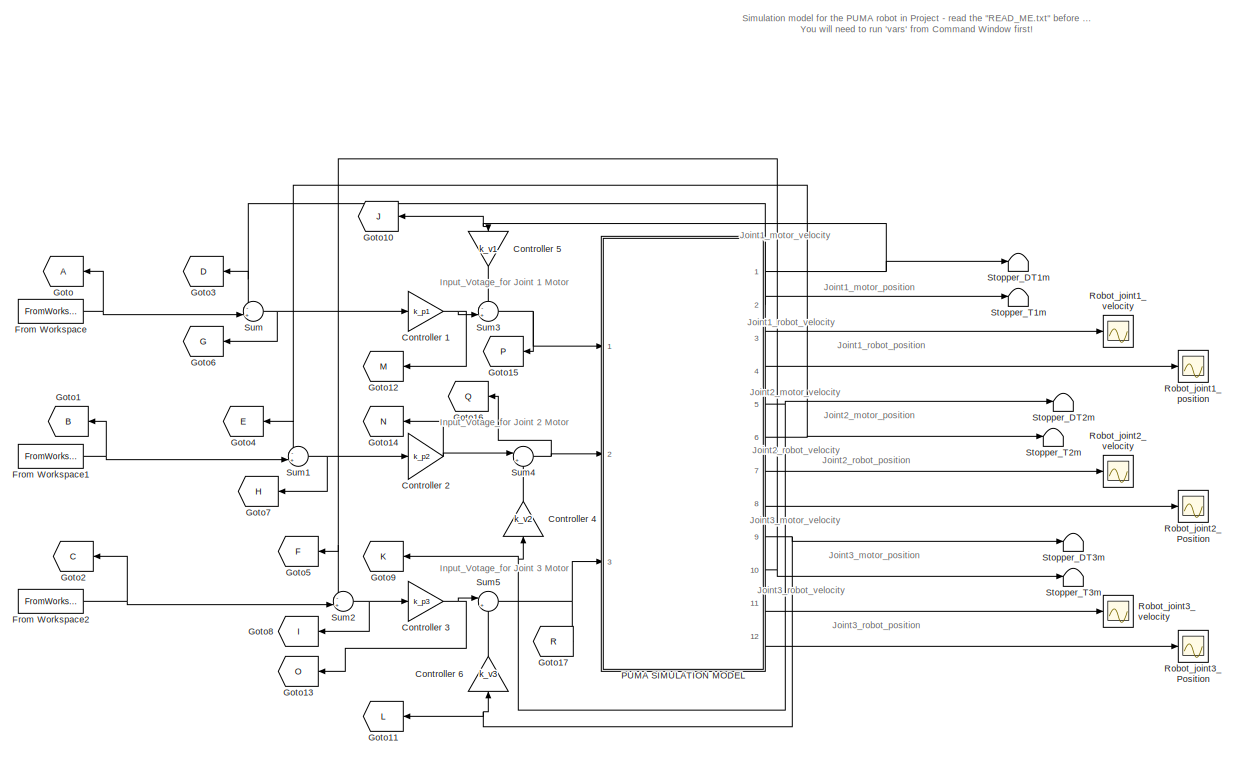
[diagram: root canvas - part 1/2, full width, middle band]
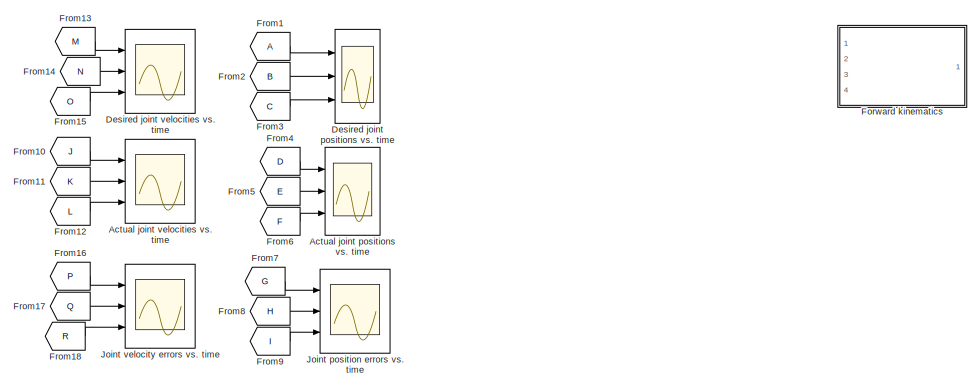
[diagram: root canvas - part 2/2, full width, bottom band]
MODEL slx_6dec7e815688
KIND model
CONFIG AbsTol = 1e-6
CONFIG EnableMultiTasking = off
CONFIG FixedStep = auto
CONFIG MaxStep = 10
CONFIG MinStep = auto
CONFIG RelTol = 1e-3
CONFIG SampleTimeConstraint = Unconstrained
CONFIG SolverName = ode45
CONFIG StartTime = 0.0
CONFIG StopTime = 5
BLOCK [Scope] Actual joint positions vs. time 
  Floating = off
  NumInputPorts = 3
  Ports = [3]
  ScopeSpecificationString = Simulink.scopes.TimeScopeBlockCfg('CurrentConfiguration', extmgr.ConfigurationSet(extmgr.Configuration('Core','General UI',true),extmgr.Configuration('Core','Source UI',true),extmgr.Configuration('Sources','WiredSimulink',true,'DataLoggingVariableName','ScopeData2','DataLoggingSaveFormat','StructureWithTime','DataLoggingLimitDataPoints',true,'DataLoggingDecimation','1','DataLoggingDecimateData',tr...<+2044ch>
BLOCK [Scope] Actual joint velocities vs. time 
  Floating = off
  NumInputPorts = 3
  Ports = [3]
  ScopeSpecificationString = Simulink.scopes.TimeScopeBlockCfg('CurrentConfiguration', extmgr.ConfigurationSet(extmgr.Configuration('Core','General UI',true),extmgr.Configuration('Core','Source UI',true),extmgr.Configuration('Sources','WiredSimulink',true,'DataLoggingVariableName','ScopeData4','DataLoggingSaveFormat','StructureWithTime','DataLoggingLimitDataPoints',true,'DataLoggingDecimation','1','DataLoggingDecimateData',tr...<+2162ch>
BLOCK [Gain] Controller 1
  Gain = k_p1
BLOCK [Gain] Controller 2
  Gain = k_p2
BLOCK [Gain] Controller 3
  Gain = k_p3
BLOCK [Gain] Controller 4
  Gain = k_v2
  NameLocation = left
BLOCK [Gain] Controller 5
  Gain = k_v1
  NameLocation = left
BLOCK [Gain] Controller 6
  Gain = k_v3
  NameLocation = left
BLOCK [Scope] Desired joint positions vs. time
  Floating = off
  NumInputPorts = 3
  Ports = [3]
  ScopeSpecificationString = Simulink.scopes.TimeScopeBlockCfg('CurrentConfiguration', extmgr.ConfigurationSet(extmgr.Configuration('Core','General UI',true),extmgr.Configuration('Core','Source UI',true),extmgr.Configuration('Sources','WiredSimulink',true,'DataLoggingVariableName','ScopeData1','DataLoggingSaveFormat','StructureWithTime','DataLoggingLimitDataPoints',true,'DataLoggingDecimation','1','DataLoggingDecimateData',tr...<+2117ch>
BLOCK [Scope] Desired joint velocities vs. time 
  Floating = off
  NumInputPorts = 3
  Ports = [3]
  ScopeSpecificationString = Simulink.scopes.TimeScopeBlockCfg('CurrentConfiguration', extmgr.ConfigurationSet(extmgr.Configuration('Core','General UI',true),extmgr.Configuration('Core','Source UI',true),extmgr.Configuration('Sources','WiredSimulink',true,'DataLoggingVariableName','ScopeData5','DataLoggingSaveFormat','StructureWithTime','DataLoggingLimitDataPoints',true,'DataLoggingDecimation','1','DataLoggingDecimateData',tr...<+2162ch>
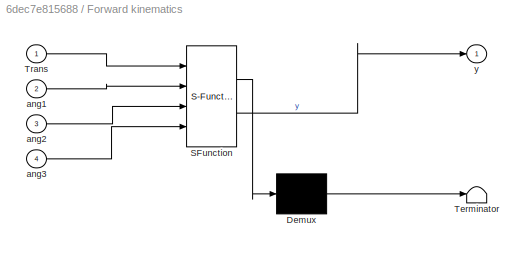
BLOCK [SubSystem] Forward kinematics
  ErrorFcn = Stateflow.Translate.translate
  PermitHierarchicalResolution = ExplicitOnly
  Ports = [4, 1]
  RequestExecContextInheritance = off
  SFBlockType = MATLAB Function
  TreatAsAtomicUnit = on
BLOCK [Demux] Forward kinematics/ Demux 
  Outputs = 1
  Ports = [1, 1]
BLOCK [S-Function] Forward kinematics/ SFunction 
  EnableBusSupport = off
  FunctionName = sf_sfun
  PortCounts = [4 2]
  Ports = [4, 2]
  SFcnIsStateOwnerBlock = off
  SFunctionDeploymentMode = off
  Tag = Stateflow S-Function 2
BLOCK [Terminator] Forward kinematics/ Terminator 
BLOCK [Inport] Forward kinematics/Trans
BLOCK [Inport] Forward kinematics/ang1
  Port = 2
BLOCK [Inport] Forward kinematics/ang2
  Port = 3
BLOCK [Inport] Forward kinematics/ang3
  Port = 4
BLOCK [Outport] Forward kinematics/y
BLOCK [FromWorkspace] From Workspace
  OutputAfterFinalValue = Holding final value
  SampleTime = -1
  VariableName = movement(:,[1,2])
BLOCK [FromWorkspace] From Workspace1
  OutDataTypeStr = double
  OutputAfterFinalValue = Holding final value
  SampleTime = -1
  VariableName = movement(:,[3,4])
BLOCK [FromWorkspace] From Workspace2
  OutputAfterFinalValue = Holding final value
  SampleTime = -1
  VariableName = movement(:,[5,6])
BLOCK [From] From1
BLOCK [From] From10
  GotoTag = J
BLOCK [From] From11
  GotoTag = K
BLOCK [From] From12
  GotoTag = L
BLOCK [From] From13
  GotoTag = M
BLOCK [From] From14
  GotoTag = N
BLOCK [From] From15
  GotoTag = O
BLOCK [From] From16
  GotoTag = P
BLOCK [From] From17
  GotoTag = Q
BLOCK [From] From18
  GotoTag = R
BLOCK [From] From2
  GotoTag = B
BLOCK [From] From3
  GotoTag = C
BLOCK [From] From4
  GotoTag = D
BLOCK [From] From5
  GotoTag = E
BLOCK [From] From6
  GotoTag = F
BLOCK [From] From7
  GotoTag = G
BLOCK [From] From8
  GotoTag = H
BLOCK [From] From9
  GotoTag = I
BLOCK [Goto] Goto
BLOCK [Goto] Goto1
  GotoTag = B
BLOCK [Goto] Goto10
  GotoTag = J
BLOCK [Goto] Goto11
  GotoTag = L
BLOCK [Goto] Goto12
  GotoTag = M
BLOCK [Goto] Goto13
  GotoTag = O
BLOCK [Goto] Goto14
  GotoTag = N
BLOCK [Goto] Goto15
  GotoTag = P
BLOCK [Goto] Goto16
  GotoTag = Q
BLOCK [Goto] Goto17
  GotoTag = R
BLOCK [Goto] Goto2
  GotoTag = C
BLOCK [Goto] Goto3
  GotoTag = D
BLOCK [Goto] Goto4
  GotoTag = E
BLOCK [Goto] Goto5
  GotoTag = F
BLOCK [Goto] Goto6
  GotoTag = G
BLOCK [Goto] Goto7
  GotoTag = H
BLOCK [Goto] Goto8
  GotoTag = I
BLOCK [Goto] Goto9
  GotoTag = K
BLOCK [Scope] Joint position errors vs. time
  Floating = off
  NumInputPorts = 3
  Ports = [3]
  ScopeSpecificationString = Simulink.scopes.TimeScopeBlockCfg('CurrentConfiguration', extmgr.ConfigurationSet(extmgr.Configuration('Core','General UI',true),extmgr.Configuration('Core','Source UI',true),extmgr.Configuration('Sources','WiredSimulink',true,'DataLoggingVariableName','ScopeData3','DataLoggingSaveFormat','StructureWithTime','DataLoggingLimitDataPoints',true,'DataLoggingDecimation','1','DataLoggingDecimateData',tr...<+2162ch>
BLOCK [Scope] Joint velocity errors vs. time 
  Floating = off
  NumInputPorts = 3
  Ports = [3]
  ScopeSpecificationString = Simulink.scopes.TimeScopeBlockCfg('CurrentConfiguration', extmgr.ConfigurationSet(extmgr.Configuration('Core','General UI',true),extmgr.Configuration('Core','Source UI',true),extmgr.Configuration('Sources','WiredSimulink',true,'DataLoggingVariableName','ScopeData6','DataLoggingSaveFormat','StructureWithTime','DataLoggingLimitDataPoints',true,'DataLoggingDecimation','1','DataLoggingDecimateData',tr...<+2162ch>
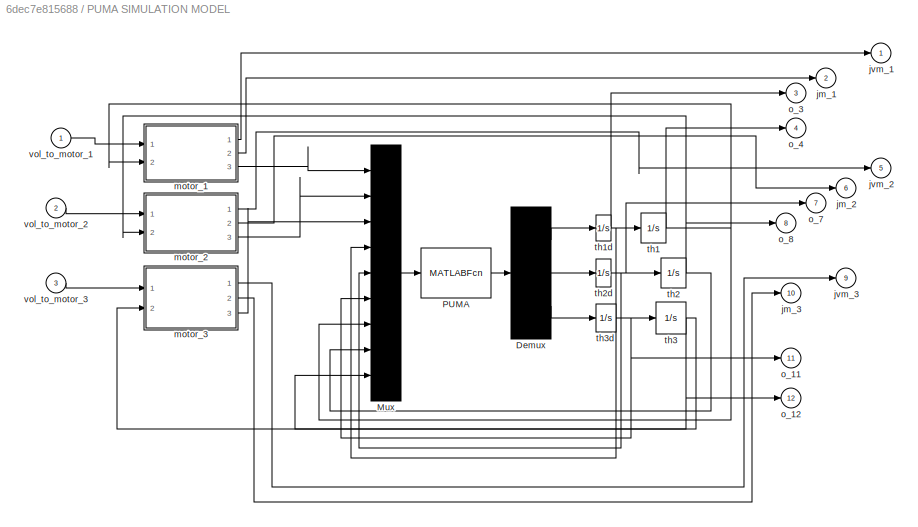
BLOCK [SubSystem] PUMA SIMULATION MODEL
  Ports = [3, 12]
  RequestExecContextInheritance = off
BLOCK [Demux] PUMA SIMULATION MODEL/Demux
  DisplayOption = none
  Outputs = 3
  Ports = [1, 3]
BLOCK [Mux] PUMA SIMULATION MODEL/Mux
  Inputs = 9
  Ports = [9, 1]
BLOCK [MATLABFcn] PUMA SIMULATION MODEL/PUMA
  MATLABFcn = puma
  OutputDimensions = 3
  Ports = [1, 1]
BLOCK [Outport] PUMA SIMULATION MODEL/jm_1
  InitialOutput = 0
  Port = 2
  VectorParamsAs1DForOutWhenUnconnected = off
BLOCK [Outport] PUMA SIMULATION MODEL/jm_2
  InitialOutput = 0
  Port = 6
  VectorParamsAs1DForOutWhenUnconnected = off
BLOCK [Outport] PUMA SIMULATION MODEL/jm_3
  InitialOutput = 0
  Port = 10
  VectorParamsAs1DForOutWhenUnconnected = off
BLOCK [Outport] PUMA SIMULATION MODEL/jvm_1
  InitialOutput = 0
  VectorParamsAs1DForOutWhenUnconnected = off
BLOCK [Outport] PUMA SIMULATION MODEL/jvm_2
  InitialOutput = 0
  Port = 5
  VectorParamsAs1DForOutWhenUnconnected = off
BLOCK [Outport] PUMA SIMULATION MODEL/jvm_3
  InitialOutput = 0
  Port = 9
  VectorParamsAs1DForOutWhenUnconnected = off
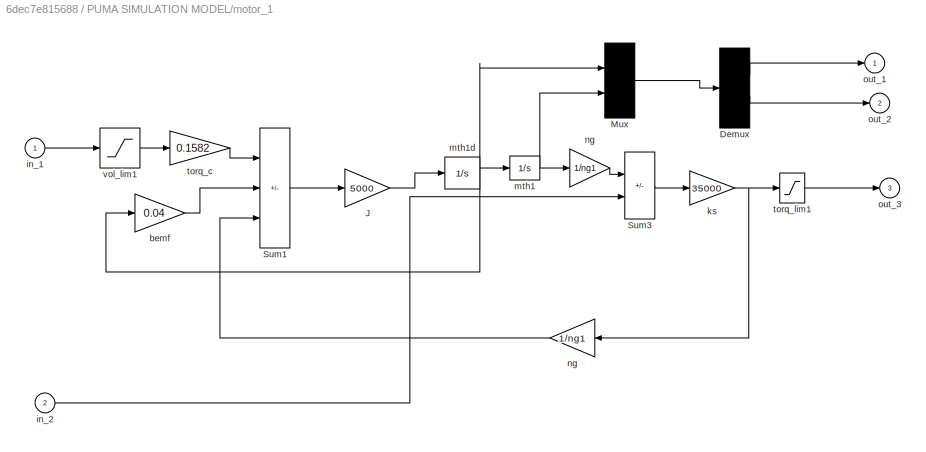
BLOCK [SubSystem] PUMA SIMULATION MODEL/motor_1
  Ports = [2, 3]
  RequestExecContextInheritance = off
BLOCK [Demux] PUMA SIMULATION MODEL/motor_1/Demux
  DisplayOption = none
  Outputs = 2
  Ports = [1, 2]
BLOCK [Gain] PUMA SIMULATION MODEL/motor_1/J
  Gain = 5000
  OutDataTypeStr = Inherit: Same as input
  ParamDataTypeStr = Inherit: Same as input
  SaturateOnIntegerOverflow = on
BLOCK [Mux] PUMA SIMULATION MODEL/motor_1/Mux
  Inputs = 2
  Ports = [2, 1]
BLOCK [Sum] PUMA SIMULATION MODEL/motor_1/Sum1
  IconShape = rectangular
  InputSameDT = on
  Inputs = +--
  OutDataTypeStr = Inherit: Same as first input
  Ports = [3, 1]
  SaturateOnIntegerOverflow = on
BLOCK [Sum] PUMA SIMULATION MODEL/motor_1/Sum3
  IconShape = rectangular
  InputSameDT = on
  Inputs = +-
  OutDataTypeStr = Inherit: Same as first input
  Ports = [2, 1]
  SaturateOnIntegerOverflow = on
BLOCK [Gain] PUMA SIMULATION MODEL/motor_1/bemf
  Gain = 0.04
  OutDataTypeStr = Inherit: Same as input
  ParamDataTypeStr = Inherit: Same as input
  SaturateOnIntegerOverflow = on
BLOCK [Inport] PUMA SIMULATION MODEL/motor_1/in_1
BLOCK [Inport] PUMA SIMULATION MODEL/motor_1/in_2
  Port = 2
BLOCK [Gain] PUMA SIMULATION MODEL/motor_1/ks
  Gain = 35000
  OutDataTypeStr = Inherit: Same as input
  ParamDataTypeStr = Inherit: Same as input
  SaturateOnIntegerOverflow = on
BLOCK [Integrator] PUMA SIMULATION MODEL/motor_1/mth1
  InitialCondition = ng1*thr10
  Ports = [1, 1]
BLOCK [Integrator] PUMA SIMULATION MODEL/motor_1/mth1d
  Ports = [1, 1]
BLOCK [Gain] PUMA SIMULATION MODEL/motor_1/ng
  Gain = 1/ng1
  OutDataTypeStr = Inherit: Same as input
  ParamDataTypeStr = Inherit: Same as input
  SaturateOnIntegerOverflow = on
BLOCK [Gain] PUMA SIMULATION MODEL/motor_1/ng 
  Gain = 1/ng1
  OutDataTypeStr = Inherit: Same as input
  ParamDataTypeStr = Inherit: Same as input
  SaturateOnIntegerOverflow = on
BLOCK [Outport] PUMA SIMULATION MODEL/motor_1/out_1
  InitialOutput = 0
  VectorParamsAs1DForOutWhenUnconnected = off
BLOCK [Outport] PUMA SIMULATION MODEL/motor_1/out_2
  InitialOutput = 0
  Port = 2
  VectorParamsAs1DForOutWhenUnconnected = off
BLOCK [Outport] PUMA SIMULATION MODEL/motor_1/out_3
  InitialOutput = 0
  Port = 3
  VectorParamsAs1DForOutWhenUnconnected = off
BLOCK [Gain] PUMA SIMULATION MODEL/motor_1/torq_c
  Gain = 0.1582
  OutDataTypeStr = Inherit: Same as input
  ParamDataTypeStr = Inherit: Same as input
  SaturateOnIntegerOverflow = on
BLOCK [Saturate] PUMA SIMULATION MODEL/motor_1/torq_lim1
  LowerLimit = -1.2*ng1
  UpperLimit = 1.2*ng1
BLOCK [Saturate] PUMA SIMULATION MODEL/motor_1/vol_lim1
  LowerLimit = -40
  UpperLimit = 40
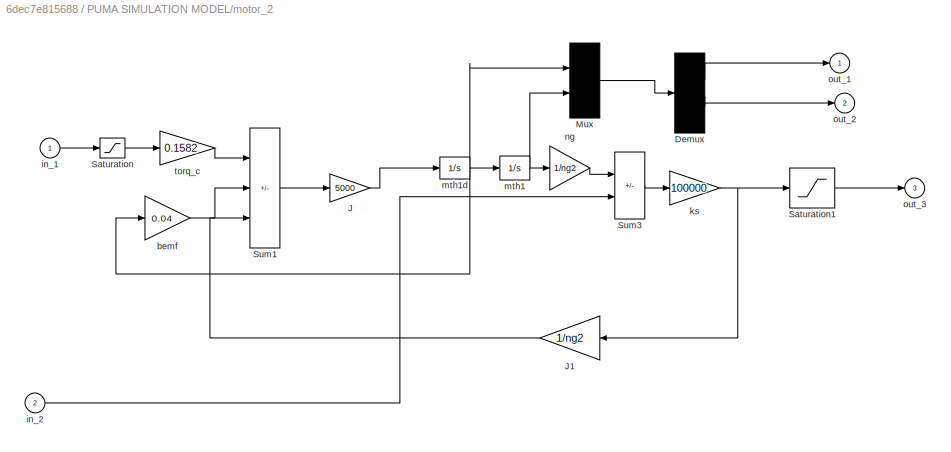
BLOCK [SubSystem] PUMA SIMULATION MODEL/motor_2
  Ports = [2, 3]
  RequestExecContextInheritance = off
BLOCK [Demux] PUMA SIMULATION MODEL/motor_2/Demux
  DisplayOption = none
  Outputs = 2
  Ports = [1, 2]
BLOCK [Gain] PUMA SIMULATION MODEL/motor_2/J
  Gain = 5000
  OutDataTypeStr = Inherit: Same as input
  ParamDataTypeStr = Inherit: Same as input
  SaturateOnIntegerOverflow = on
BLOCK [Gain] PUMA SIMULATION MODEL/motor_2/J1
  Gain = 1/ng2
  OutDataTypeStr = Inherit: Same as input
  ParamDataTypeStr = Inherit: Same as input
  SaturateOnIntegerOverflow = on
BLOCK [Mux] PUMA SIMULATION MODEL/motor_2/Mux
  Inputs = 2
  Ports = [2, 1]
BLOCK [Saturate] PUMA SIMULATION MODEL/motor_2/Saturation
  LowerLimit = -40
  UpperLimit = 40
BLOCK [Saturate] PUMA SIMULATION MODEL/motor_2/Saturation1
  LowerLimit = -ng2*1.2
  UpperLimit = ng2*1.2
BLOCK [Sum] PUMA SIMULATION MODEL/motor_2/Sum1
  IconShape = rectangular
  InputSameDT = on
  Inputs = +--
  OutDataTypeStr = Inherit: Same as first input
  Ports = [3, 1]
  SaturateOnIntegerOverflow = on
BLOCK [Sum] PUMA SIMULATION MODEL/motor_2/Sum3
  IconShape = rectangular
  InputSameDT = on
  Inputs = +-
  OutDataTypeStr = Inherit: Same as first input
  Ports = [2, 1]
  SaturateOnIntegerOverflow = on
BLOCK [Gain] PUMA SIMULATION MODEL/motor_2/bemf
  Gain = 0.04
  OutDataTypeStr = Inherit: Same as input
  ParamDataTypeStr = Inherit: Same as input
  SaturateOnIntegerOverflow = on
BLOCK [Inport] PUMA SIMULATION MODEL/motor_2/in_1
BLOCK [Inport] PUMA SIMULATION MODEL/motor_2/in_2
  Port = 2
BLOCK [Gain] PUMA SIMULATION MODEL/motor_2/ks
  Gain = 100000
  OutDataTypeStr = Inherit: Same as input
  ParamDataTypeStr = Inherit: Same as input
  SaturateOnIntegerOverflow = on
BLOCK [Integrator] PUMA SIMULATION MODEL/motor_2/mth1
  InitialCondition = thr20*ng2
  Ports = [1, 1]
BLOCK [Integrator] PUMA SIMULATION MODEL/motor_2/mth1d
  Ports = [1, 1]
BLOCK [Gain] PUMA SIMULATION MODEL/motor_2/ng
  Gain = 1/ng2
  OutDataTypeStr = Inherit: Same as input
  ParamDataTypeStr = Inherit: Same as input
  SaturateOnIntegerOverflow = on
BLOCK [Outport] PUMA SIMULATION MODEL/motor_2/out_1
  InitialOutput = 0
  VectorParamsAs1DForOutWhenUnconnected = off
BLOCK [Outport] PUMA SIMULATION MODEL/motor_2/out_2
  InitialOutput = 0
  Port = 2
  VectorParamsAs1DForOutWhenUnconnected = off
BLOCK [Outport] PUMA SIMULATION MODEL/motor_2/out_3
  InitialOutput = 0
  Port = 3
  VectorParamsAs1DForOutWhenUnconnected = off
BLOCK [Gain] PUMA SIMULATION MODEL/motor_2/torq_c
  Gain = 0.1582
  OutDataTypeStr = Inherit: Same as input
  ParamDataTypeStr = Inherit: Same as input
  SaturateOnIntegerOverflow = on
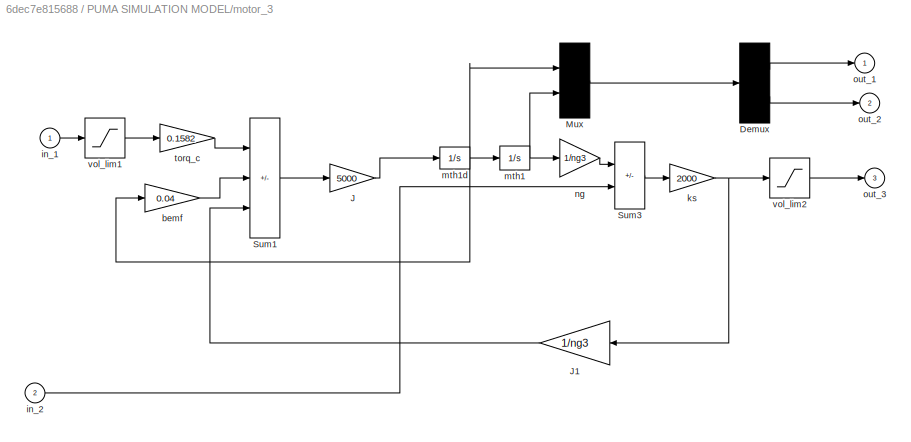
BLOCK [SubSystem] PUMA SIMULATION MODEL/motor_3
  Ports = [2, 3]
  RequestExecContextInheritance = off
BLOCK [Demux] PUMA SIMULATION MODEL/motor_3/Demux
  DisplayOption = none
  Outputs = 2
  Ports = [1, 2]
BLOCK [Gain] PUMA SIMULATION MODEL/motor_3/J
  Gain = 5000
  OutDataTypeStr = Inherit: Same as input
  ParamDataTypeStr = Inherit: Same as input
  SaturateOnIntegerOverflow = on
BLOCK [Gain] PUMA SIMULATION MODEL/motor_3/J1
  Gain = 1/ng3
  OutDataTypeStr = Inherit: Same as input
  ParamDataTypeStr = Inherit: Same as input
  SaturateOnIntegerOverflow = on
BLOCK [Mux] PUMA SIMULATION MODEL/motor_3/Mux
  Inputs = 2
  Ports = [2, 1]
BLOCK [Sum] PUMA SIMULATION MODEL/motor_3/Sum1
  IconShape = rectangular
  InputSameDT = on
  Inputs = +--
  OutDataTypeStr = Inherit: Same as first input
  Ports = [3, 1]
  SaturateOnIntegerOverflow = on
BLOCK [Sum] PUMA SIMULATION MODEL/motor_3/Sum3
  IconShape = rectangular
  InputSameDT = on
  Inputs = +-
  OutDataTypeStr = Inherit: Same as first input
  Ports = [2, 1]
  SaturateOnIntegerOverflow = on
BLOCK [Gain] PUMA SIMULATION MODEL/motor_3/bemf
  Gain = 0.04
  OutDataTypeStr = Inherit: Same as input
  ParamDataTypeStr = Inherit: Same as input
  SaturateOnIntegerOverflow = on
BLOCK [Inport] PUMA SIMULATION MODEL/motor_3/in_1
BLOCK [Inport] PUMA SIMULATION MODEL/motor_3/in_2
  Port = 2
BLOCK [Gain] PUMA SIMULATION MODEL/motor_3/ks
  Gain = 2000
  OutDataTypeStr = Inherit: Same as input
  ParamDataTypeStr = Inherit: Same as input
  SaturateOnIntegerOverflow = on
BLOCK [Integrator] PUMA SIMULATION MODEL/motor_3/mth1
  InitialCondition = thr30*ng3
  Ports = [1, 1]
BLOCK [Integrator] PUMA SIMULATION MODEL/motor_3/mth1d
  Ports = [1, 1]
BLOCK [Gain] PUMA SIMULATION MODEL/motor_3/ng
  Gain = 1/ng3
  OutDataTypeStr = Inherit: Same as input
  ParamDataTypeStr = Inherit: Same as input
  SaturateOnIntegerOverflow = on
BLOCK [Outport] PUMA SIMULATION MODEL/motor_3/out_1
  InitialOutput = 0
  VectorParamsAs1DForOutWhenUnconnected = off
BLOCK [Outport] PUMA SIMULATION MODEL/motor_3/out_2
  InitialOutput = 0
  Port = 2
  VectorParamsAs1DForOutWhenUnconnected = off
BLOCK [Outport] PUMA SIMULATION MODEL/motor_3/out_3
  InitialOutput = 0
  Port = 3
  VectorParamsAs1DForOutWhenUnconnected = off
BLOCK [Gain] PUMA SIMULATION MODEL/motor_3/torq_c
  Gain = 0.1582
  OutDataTypeStr = Inherit: Same as input
  ParamDataTypeStr = Inherit: Same as input
  SaturateOnIntegerOverflow = on
BLOCK [Saturate] PUMA SIMULATION MODEL/motor_3/vol_lim1
  LowerLimit = -40
  UpperLimit = 40
BLOCK [Saturate] PUMA SIMULATION MODEL/motor_3/vol_lim2
  LowerLimit = -1.2*ng3
  UpperLimit = 1.2*ng3
BLOCK [Outport] PUMA SIMULATION MODEL/o_11
  InitialOutput = 0
  Port = 11
  VectorParamsAs1DForOutWhenUnconnected = off
BLOCK [Outport] PUMA SIMULATION MODEL/o_12
  InitialOutput = 0
  Port = 12
  VectorParamsAs1DForOutWhenUnconnected = off
BLOCK [Outport] PUMA SIMULATION MODEL/o_3
  InitialOutput = 0
  Port = 3
  VectorParamsAs1DForOutWhenUnconnected = off
BLOCK [Outport] PUMA SIMULATION MODEL/o_4
  InitialOutput = 0
  Port = 4
  VectorParamsAs1DForOutWhenUnconnected = off
BLOCK [Outport] PUMA SIMULATION MODEL/o_7
  InitialOutput = 0
  Port = 7
  VectorParamsAs1DForOutWhenUnconnected = off
BLOCK [Outport] PUMA SIMULATION MODEL/o_8
  InitialOutput = 0
  Port = 8
  VectorParamsAs1DForOutWhenUnconnected = off
BLOCK [Integrator] PUMA SIMULATION MODEL/th1
  InitialCondition = thr10
  Ports = [1, 1]
BLOCK [Integrator] PUMA SIMULATION MODEL/th1d
  Ports = [1, 1]
BLOCK [Integrator] PUMA SIMULATION MODEL/th2
  InitialCondition = thr20
  Ports = [1, 1]
BLOCK [Integrator] PUMA SIMULATION MODEL/th2d
  Ports = [1, 1]
BLOCK [Integrator] PUMA SIMULATION MODEL/th3
  InitialCondition = thr30
  Ports = [1, 1]
BLOCK [Integrator] PUMA SIMULATION MODEL/th3d
  Ports = [1, 1]
BLOCK [Inport] PUMA SIMULATION MODEL/vol_to_motor_1
BLOCK [Inport] PUMA SIMULATION MODEL/vol_to_motor_2
  Port = 2
BLOCK [Inport] PUMA SIMULATION MODEL/vol_to_motor_3
  Port = 3
BLOCK [Scope] Robot_joint1_position
  Floating = off
  NumInputPorts = 1
  Ports = [1]
  ScopeSpecificationString = Simulink.scopes.TimeScopeBlockCfg('CurrentConfiguration', extmgr.ConfigurationSet(extmgr.Configuration('Core','General UI',true),extmgr.Configuration('Core','Source UI',true),extmgr.Configuration('Sources','WiredSimulink',true,'DataLoggingVariableName','ScopeData1','DataLoggingSaveFormat','StructureWithTime','DataLoggingLimitDataPoints',true,'DataLoggingDecimation','1','DataLoggingDecimateData',tr...<+2041ch>
BLOCK [Scope] Robot_joint1_velocity
  Floating = off
  NumInputPorts = 1
  Ports = [1]
  ScopeSpecificationString = Simulink.scopes.TimeScopeBlockCfg('CurrentConfiguration', extmgr.ConfigurationSet(extmgr.Configuration('Core','General UI',true),extmgr.Configuration('Core','Source UI',true),extmgr.Configuration('Sources','WiredSimulink',true,'DataLoggingSaveFormat','StructureWithTime','DataLoggingLimitDataPoints',true,'DataLoggingDecimation','1','DataLoggingDecimateData',true),extmgr.Configuration('Visuals','Tim...<+1724ch>
BLOCK [Scope] Robot_joint2_Position
  Floating = off
  NumInputPorts = 1
  Ports = [1]
  ScopeSpecificationString = Simulink.scopes.TimeScopeBlockCfg('CurrentConfiguration', extmgr.ConfigurationSet(extmgr.Configuration('Core','General UI',true),extmgr.Configuration('Core','Source UI',true),extmgr.Configuration('Sources','WiredSimulink',true,'DataLoggingVariableName','ScopeData6','DataLoggingSaveFormat','StructureWithTime','DataLoggingLimitDataPoints',true,'DataLoggingDecimation','1','DataLoggingDecimateData',tr...<+2049ch>
BLOCK [Scope] Robot_joint2_velocity
  Floating = off
  NumInputPorts = 1
  Ports = [1]
  ScopeSpecificationString = Simulink.scopes.TimeScopeBlockCfg('CurrentConfiguration', extmgr.ConfigurationSet(extmgr.Configuration('Core','General UI',true),extmgr.Configuration('Core','Source UI',true),extmgr.Configuration('Sources','WiredSimulink',true,'DataLoggingVariableName','ScopeData3','DataLoggingSaveFormat','StructureWithTime','DataLoggingLimitDataPoints',true,'DataLoggingDecimation','1','DataLoggingDecimateData',tr...<+1765ch>
BLOCK [Scope] Robot_joint3_Position
  Floating = off
  NumInputPorts = 1
  Ports = [1]
  ScopeSpecificationString = Simulink.scopes.TimeScopeBlockCfg('CurrentConfiguration', extmgr.ConfigurationSet(extmgr.Configuration('Core','General UI',true),extmgr.Configuration('Core','Source UI',true),extmgr.Configuration('Sources','WiredSimulink',true,'DataLoggingVariableName','ScopeData5','DataLoggingSaveFormat','StructureWithTime','DataLoggingDecimation','1'),extmgr.Configuration('Visuals','Time Domain',true,'Serialized...<+1954ch>
BLOCK [Scope] Robot_joint3_velocity
  Floating = off
  NumInputPorts = 1
  Ports = [1]
  ScopeSpecificationString = Simulink.scopes.TimeScopeBlockCfg('CurrentConfiguration', extmgr.ConfigurationSet(extmgr.Configuration('Core','General UI',true),extmgr.Configuration('Core','Source UI',true),extmgr.Configuration('Sources','WiredSimulink',true,'DataLoggingVariableName','ScopeData4','DataLoggingSaveFormat','StructureWithTime','DataLoggingLimitDataPoints',true,'DataLoggingDecimation','1','DataLoggingDecimateData',tr...<+1766ch>
BLOCK [Terminator] Stopper_DT1m
BLOCK [Terminator] Stopper_DT2m
BLOCK [Terminator] Stopper_DT3m
BLOCK [Terminator] Stopper_T1m
BLOCK [Terminator] Stopper_T2m
BLOCK [Terminator] Stopper_T3m
BLOCK [Sum] Sum
  Inputs = -+|
  Ports = [2, 1]
BLOCK [Sum] Sum1
  Inputs = -+|
  Ports = [2, 1]
BLOCK [Sum] Sum2
  Inputs = -+|
  Ports = [2, 1]
BLOCK [Sum] Sum3
  Inputs = -+|
  Ports = [2, 1]
BLOCK [Sum] Sum4
  Inputs = |+-
  Ports = [2, 1]
BLOCK [Sum] Sum5
  Inputs = |+-
  Ports = [2, 1]
ANNOTATION (root): Input_Votage_for Joint 1 Motor
ANNOTATION (root): Input_Votage_for Joint 2 Motor
ANNOTATION (root): Input_Votage_for Joint 3 Motor
ANNOTATION (root): Joint1_motor_position
ANNOTATION (root): Joint1_motor_velocity
ANNOTATION (root): Joint1_robot_position
ANNOTATION (root): Joint1_robot_velocity
ANNOTATION (root): Joint2_motor_position
ANNOTATION (root): Joint2_motor_velocity
ANNOTATION (root): Joint2_robot_position
ANNOTATION (root): Joint2_robot_velocity
ANNOTATION (root): Joint3_motor_position
ANNOTATION (root): Joint3_motor_velocity
ANNOTATION (root): Joint3_robot_position
ANNOTATION (root): Joint3_robot_velocity
ANNOTATION (root): Simulation model for the PUMA robot in Project - read the "READ_ME.txt" before running this simulation You will need to run 'vars' from Command Window first!
NET Controller 1:1 -> Goto12:1, Sum3:2
NET Controller 2:1 -> Goto14:1, Sum4:1
NET Controller 3:1 -> Goto13:1, Sum5:1
LINE Controller 4:1 -> Sum4:2
LINE Controller 5:1 -> Sum3:1
LINE Controller 6:1 -> Sum5:2
NET From Workspace1:1 -> Goto1:1, Sum1:2
NET From Workspace2:1 -> Goto2:1, Sum2:2
NET From Workspace:1 -> Goto:1, Sum:2
LINE From10:1 -> Actual joint velocities vs. time :1
LINE From11:1 -> Actual joint velocities vs. time :2
LINE From12:1 -> Actual joint velocities vs. time :3
LINE From13:1 -> Desired joint velocities vs. time :1
LINE From14:1 -> Desired joint velocities vs. time :2
LINE From15:1 -> Desired joint velocities vs. time :3
LINE From16:1 -> Joint velocity errors vs. time :1
LINE From17:1 -> Joint velocity errors vs. time :2
LINE From18:1 -> Joint velocity errors vs. time :3
LINE From1:1 -> Desired joint positions vs. time:1
LINE From2:1 -> Desired joint positions vs. time:2
LINE From3:1 -> Desired joint positions vs. time:3
LINE From4:1 -> Actual joint positions vs. time :1
LINE From5:1 -> Actual joint positions vs. time :2
LINE From6:1 -> Actual joint positions vs. time :3
LINE From7:1 -> Joint position errors vs. time:1
LINE From8:1 -> Joint position errors vs. time:2
LINE From9:1 -> Joint position errors vs. time:3
LINE PUMA SIMULATION MODEL/Demux:1 -> PUMA SIMULATION MODEL/th1d:1
LINE PUMA SIMULATION MODEL/Demux:2 -> PUMA SIMULATION MODEL/th2d:1
LINE PUMA SIMULATION MODEL/Demux:3 -> PUMA SIMULATION MODEL/th3d:1
LINE PUMA SIMULATION MODEL/Mux:1 -> PUMA SIMULATION MODEL/PUMA:1
LINE PUMA SIMULATION MODEL/PUMA:1 -> PUMA SIMULATION MODEL/Demux:1
LINE PUMA SIMULATION MODEL/motor_1/Demux:1 -> PUMA SIMULATION MODEL/motor_1/out_1:1
LINE PUMA SIMULATION MODEL/motor_1/Demux:2 -> PUMA SIMULATION MODEL/motor_1/out_2:1
LINE PUMA SIMULATION MODEL/motor_1/J:1 -> PUMA SIMULATION MODEL/motor_1/mth1d:1
LINE PUMA SIMULATION MODEL/motor_1/Mux:1 -> PUMA SIMULATION MODEL/motor_1/Demux:1
LINE PUMA SIMULATION MODEL/motor_1/Sum1:1 -> PUMA SIMULATION MODEL/motor_1/J:1
LINE PUMA SIMULATION MODEL/motor_1/Sum3:1 -> PUMA SIMULATION MODEL/motor_1/ks:1
LINE PUMA SIMULATION MODEL/motor_1/bemf:1 -> PUMA SIMULATION MODEL/motor_1/Sum1:2
LINE PUMA SIMULATION MODEL/motor_1/in_1:1 -> PUMA SIMULATION MODEL/motor_1/vol_lim1:1
LINE PUMA SIMULATION MODEL/motor_1/in_2:1 -> PUMA SIMULATION MODEL/motor_1/Sum3:2
NET PUMA SIMULATION MODEL/motor_1/ks:1 -> PUMA SIMULATION MODEL/motor_1/ng :1, PUMA SIMULATION MODEL/motor_1/torq_lim1:1
NET PUMA SIMULATION MODEL/motor_1/mth1:1 -> PUMA SIMULATION MODEL/motor_1/Mux:2, PUMA SIMULATION MODEL/motor_1/ng:1
NET PUMA SIMULATION MODEL/motor_1/mth1d:1 -> PUMA SIMULATION MODEL/motor_1/Mux:1, PUMA SIMULATION MODEL/motor_1/bemf:1, PUMA SIMULATION MODEL/motor_1/mth1:1
LINE PUMA SIMULATION MODEL/motor_1/ng :1 -> PUMA SIMULATION MODEL/motor_1/Sum1:3
LINE PUMA SIMULATION MODEL/motor_1/ng:1 -> PUMA SIMULATION MODEL/motor_1/Sum3:1
LINE PUMA SIMULATION MODEL/motor_1/torq_c:1 -> PUMA SIMULATION MODEL/motor_1/Sum1:1
LINE PUMA SIMULATION MODEL/motor_1/torq_lim1:1 -> PUMA SIMULATION MODEL/motor_1/out_3:1
LINE PUMA SIMULATION MODEL/motor_1/vol_lim1:1 -> PUMA SIMULATION MODEL/motor_1/torq_c:1
LINE PUMA SIMULATION MODEL/motor_1:1 -> PUMA SIMULATION MODEL/jvm_1:1
LINE PUMA SIMULATION MODEL/motor_1:2 -> PUMA SIMULATION MODEL/jm_1:1
LINE PUMA SIMULATION MODEL/motor_1:3 -> PUMA SIMULATION MODEL/Mux:1
LINE PUMA SIMULATION MODEL/motor_2/Demux:1 -> PUMA SIMULATION MODEL/motor_2/out_1:1
LINE PUMA SIMULATION MODEL/motor_2/Demux:2 -> PUMA SIMULATION MODEL/motor_2/out_2:1
LINE PUMA SIMULATION MODEL/motor_2/J1:1 -> PUMA SIMULATION MODEL/motor_2/Sum1:3
LINE PUMA SIMULATION MODEL/motor_2/J:1 -> PUMA SIMULATION MODEL/motor_2/mth1d:1
LINE PUMA SIMULATION MODEL/motor_2/Mux:1 -> PUMA SIMULATION MODEL/motor_2/Demux:1
LINE PUMA SIMULATION MODEL/motor_2/Saturation1:1 -> PUMA SIMULATION MODEL/motor_2/out_3:1
LINE PUMA SIMULATION MODEL/motor_2/Saturation:1 -> PUMA SIMULATION MODEL/motor_2/torq_c:1
LINE PUMA SIMULATION MODEL/motor_2/Sum1:1 -> PUMA SIMULATION MODEL/motor_2/J:1
LINE PUMA SIMULATION MODEL/motor_2/Sum3:1 -> PUMA SIMULATION MODEL/motor_2/ks:1
LINE PUMA SIMULATION MODEL/motor_2/bemf:1 -> PUMA SIMULATION MODEL/motor_2/Sum1:2
LINE PUMA SIMULATION MODEL/motor_2/in_1:1 -> PUMA SIMULATION MODEL/motor_2/Saturation:1
LINE PUMA SIMULATION MODEL/motor_2/in_2:1 -> PUMA SIMULATION MODEL/motor_2/Sum3:2
NET PUMA SIMULATION MODEL/motor_2/ks:1 -> PUMA SIMULATION MODEL/motor_2/J1:1, PUMA SIMULATION MODEL/motor_2/Saturation1:1
NET PUMA SIMULATION MODEL/motor_2/mth1:1 -> PUMA SIMULATION MODEL/motor_2/Mux:2, PUMA SIMULATION MODEL/motor_2/ng:1
NET PUMA SIMULATION MODEL/motor_2/mth1d:1 -> PUMA SIMULATION MODEL/motor_2/Mux:1, PUMA SIMULATION MODEL/motor_2/bemf:1, PUMA SIMULATION MODEL/motor_2/mth1:1
LINE PUMA SIMULATION MODEL/motor_2/ng:1 -> PUMA SIMULATION MODEL/motor_2/Sum3:1
LINE PUMA SIMULATION MODEL/motor_2/torq_c:1 -> PUMA SIMULATION MODEL/motor_2/Sum1:1
LINE PUMA SIMULATION MODEL/motor_2:1 -> PUMA SIMULATION MODEL/jvm_2:1
LINE PUMA SIMULATION MODEL/motor_2:2 -> PUMA SIMULATION MODEL/jm_2:1
LINE PUMA SIMULATION MODEL/motor_2:3 -> PUMA SIMULATION MODEL/Mux:2
LINE PUMA SIMULATION MODEL/motor_3/Demux:1 -> PUMA SIMULATION MODEL/motor_3/out_1:1
LINE PUMA SIMULATION MODEL/motor_3/Demux:2 -> PUMA SIMULATION MODEL/motor_3/out_2:1
LINE PUMA SIMULATION MODEL/motor_3/J1:1 -> PUMA SIMULATION MODEL/motor_3/Sum1:3
LINE PUMA SIMULATION MODEL/motor_3/J:1 -> PUMA SIMULATION MODEL/motor_3/mth1d:1
LINE PUMA SIMULATION MODEL/motor_3/Mux:1 -> PUMA SIMULATION MODEL/motor_3/Demux:1
LINE PUMA SIMULATION MODEL/motor_3/Sum1:1 -> PUMA SIMULATION MODEL/motor_3/J:1
LINE PUMA SIMULATION MODEL/motor_3/Sum3:1 -> PUMA SIMULATION MODEL/motor_3/ks:1
LINE PUMA SIMULATION MODEL/motor_3/bemf:1 -> PUMA SIMULATION MODEL/motor_3/Sum1:2
LINE PUMA SIMULATION MODEL/motor_3/in_1:1 -> PUMA SIMULATION MODEL/motor_3/vol_lim1:1
LINE PUMA SIMULATION MODEL/motor_3/in_2:1 -> PUMA SIMULATION MODEL/motor_3/Sum3:2
NET PUMA SIMULATION MODEL/motor_3/ks:1 -> PUMA SIMULATION MODEL/motor_3/J1:1, PUMA SIMULATION MODEL/motor_3/vol_lim2:1
NET PUMA SIMULATION MODEL/motor_3/mth1:1 -> PUMA SIMULATION MODEL/motor_3/Mux:2, PUMA SIMULATION MODEL/motor_3/ng:1
NET PUMA SIMULATION MODEL/motor_3/mth1d:1 -> PUMA SIMULATION MODEL/motor_3/Mux:1, PUMA SIMULATION MODEL/motor_3/bemf:1, PUMA SIMULATION MODEL/motor_3/mth1:1
LINE PUMA SIMULATION MODEL/motor_3/ng:1 -> PUMA SIMULATION MODEL/motor_3/Sum3:1
LINE PUMA SIMULATION MODEL/motor_3/torq_c:1 -> PUMA SIMULATION MODEL/motor_3/Sum1:1
LINE PUMA SIMULATION MODEL/motor_3/vol_lim1:1 -> PUMA SIMULATION MODEL/motor_3/torq_c:1
LINE PUMA SIMULATION MODEL/motor_3/vol_lim2:1 -> PUMA SIMULATION MODEL/motor_3/out_3:1
LINE PUMA SIMULATION MODEL/motor_3:1 -> PUMA SIMULATION MODEL/jvm_3:1
LINE PUMA SIMULATION MODEL/motor_3:2 -> PUMA SIMULATION MODEL/jm_3:1
LINE PUMA SIMULATION MODEL/motor_3:3 -> PUMA SIMULATION MODEL/Mux:3
NET PUMA SIMULATION MODEL/th1:1 -> PUMA SIMULATION MODEL/Mux:7, PUMA SIMULATION MODEL/motor_1:2, PUMA SIMULATION MODEL/o_4:1
NET PUMA SIMULATION MODEL/th1d:1 -> PUMA SIMULATION MODEL/Mux:4, PUMA SIMULATION MODEL/o_3:1, PUMA SIMULATION MODEL/th1:1
NET PUMA SIMULATION MODEL/th2:1 -> PUMA SIMULATION MODEL/Mux:8, PUMA SIMULATION MODEL/motor_2:2, PUMA SIMULATION MODEL/o_8:1
NET PUMA SIMULATION MODEL/th2d:1 -> PUMA SIMULATION MODEL/Mux:5, PUMA SIMULATION MODEL/o_7:1, PUMA SIMULATION MODEL/th2:1
NET PUMA SIMULATION MODEL/th3:1 -> PUMA SIMULATION MODEL/Mux:9, PUMA SIMULATION MODEL/motor_3:2, PUMA SIMULATION MODEL/o_12:1
NET PUMA SIMULATION MODEL/th3d:1 -> PUMA SIMULATION MODEL/Mux:6, PUMA SIMULATION MODEL/o_11:1, PUMA SIMULATION MODEL/th3:1
LINE PUMA SIMULATION MODEL/vol_to_motor_1:1 -> PUMA SIMULATION MODEL/motor_1:1
LINE PUMA SIMULATION MODEL/vol_to_motor_2:1 -> PUMA SIMULATION MODEL/motor_2:1
LINE PUMA SIMULATION MODEL/vol_to_motor_3:1 -> PUMA SIMULATION MODEL/motor_3:1
NET PUMA SIMULATION MODEL:1 -> Controller 5:1, Goto10:1, Stopper_DT1m:1
NET PUMA SIMULATION MODEL:10 -> Goto5:1, Stopper_T3m:1, Sum2:1
LINE PUMA SIMULATION MODEL:11 -> Robot_joint3_velocity:1
LINE PUMA SIMULATION MODEL:12 -> Robot_joint3_Position:1
NET PUMA SIMULATION MODEL:2 -> Goto3:1, Stopper_T1m:1, Sum:1
LINE PUMA SIMULATION MODEL:3 -> Robot_joint1_velocity:1
LINE PUMA SIMULATION MODEL:4 -> Robot_joint1_position:1
NET PUMA SIMULATION MODEL:5 -> Controller 4:1, Goto9:1, Stopper_DT2m:1
NET PUMA SIMULATION MODEL:6 -> Goto4:1, Stopper_T2m:1, Sum1:1
LINE PUMA SIMULATION MODEL:7 -> Robot_joint2_velocity:1
LINE PUMA SIMULATION MODEL:8 -> Robot_joint2_Position:1
NET PUMA SIMULATION MODEL:9 -> Controller 6:1, Goto11:1, Stopper_DT3m:1
NET Sum1:1 -> Controller 2:1, Goto7:1
NET Sum2:1 -> Controller 3:1, Goto8:1
NET Sum3:1 -> Goto15:1, PUMA SIMULATION MODEL:1
NET Sum4:1 -> Goto16:1, PUMA SIMULATION MODEL:2
NET Sum5:1 -> Goto17:1, PUMA SIMULATION MODEL:3
NET Sum:1 -> Controller 1:1, Goto6:1
note: NET lines group one-source signal fan-out (src -> all destinations, sorted); 1:1 wires keep LINE
CHART Forward kinematics states=1 transitions=1
  STATE_LABEL 'eML_blk_kernel()'
  STATE_LABEL 'SCRIPT:\nfunction y = fcn(Trans,ang1,ang2,ang3)\ntemp = vpa(subs(Trans,{thi1,thi2,thi3},{ang1,ang2,ang3}));\ntemp = vpa(temp,3);\ny = temp;\n'
CHART  states=0 transitions=0
